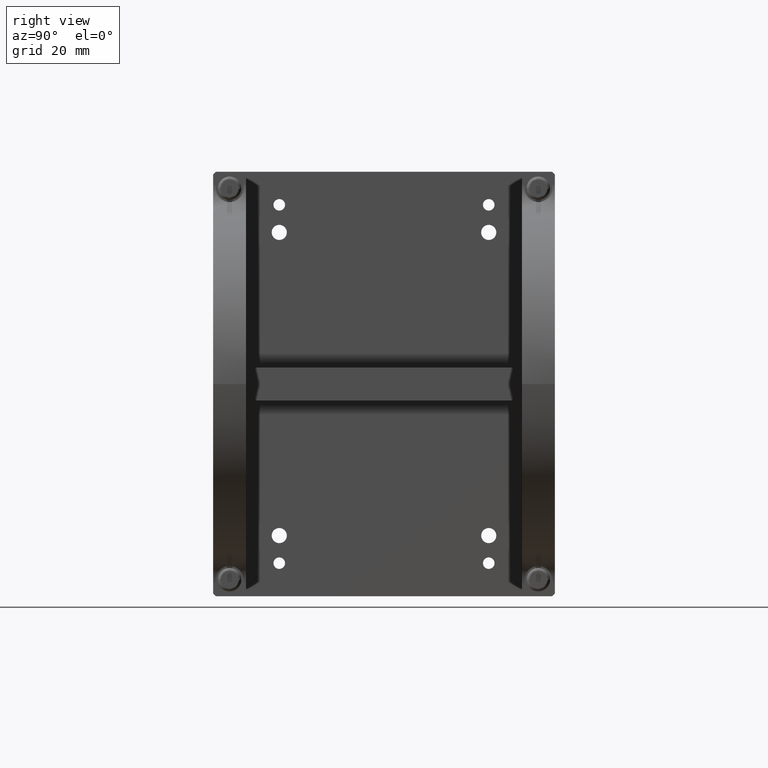
[diagram: clean part render]
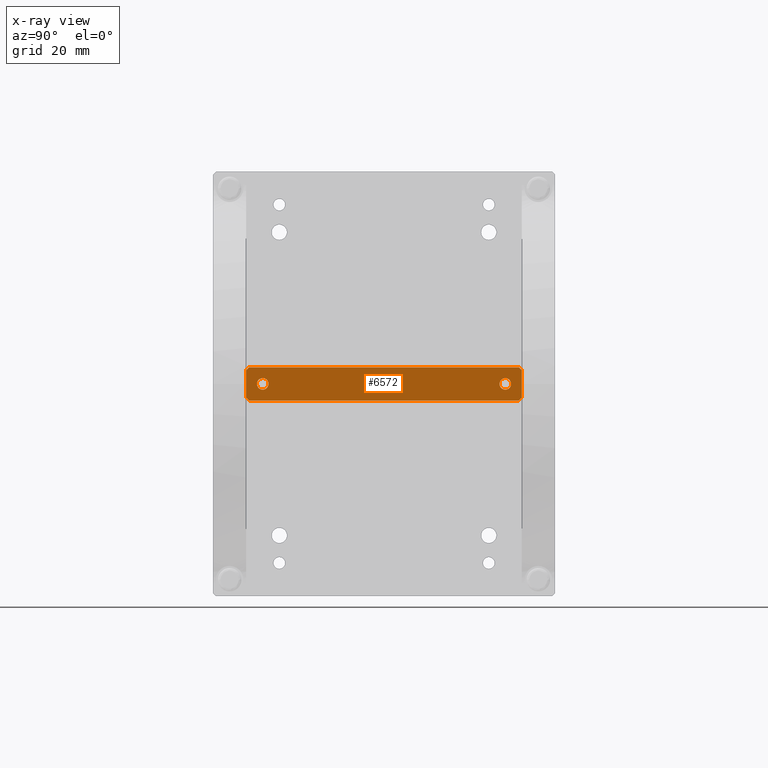
[diagram: x-ray — body ghosted, one internal face saturated and labeled with its STEP entity id]
A machine part, right view, then the same camera in x-ray: the body is ghosted and one INTERNAL B-rep face — a face not visible from any outside direction — is saturated and labeled: STEP entity #6572.
In plain terms, the highlighted face is a freeform B-spline surface patch.
Its self-contained STEP definition (entity closure, byte-faithful):
#38 = CARTESIAN_POINT ( 'NONE',  ( 0.0000000000000000000, 43.99999999987430499, 2.100000000000000089 ) ) ;
#57 = CARTESIAN_POINT ( 'NONE',  ( 0.0000000000000000000, -42.94158106666667152, 1.834612135999997840 ) ) ;
#85 = CARTESIAN_POINT ( 'NONE',  ( 0.0000000000000000000, -50.00000000000000000, -5.000000001333329891 ) ) ;
#89 = CARTESIAN_POINT ( 'NONE',  ( 0.0000000000000000000, -43.99999999987430499, 2.100000000000000089 ) ) ;
#128 = CARTESIAN_POINT ( 'NONE',  ( -0.0000000000000000000, -41.95431806666667285, -0.5488514679999981771 ) ) ;
#263 = EDGE_LOOP ( 'NONE', ( #5318, #7075, #3029, #3217, #6960, #6922, #2659, #6335 ) ) ;
#270 = CARTESIAN_POINT ( 'NONE',  ( -0.0000000000000000000, 45.67992726666667380, -1.289921203999999211 ) ) ;
#362 = EDGE_CURVE ( 'NONE', #1729, #1480, #4016, .T. ) ;
#370 = CARTESIAN_POINT ( 'NONE',  ( 0.0000000000000000000, 50.00000000000000000, -5.000000001333329891 ) ) ;
#383 = CARTESIAN_POINT ( 'NONE',  ( -0.0000000000000000000, 41.90000000000001279, -0.2757759359999994997 ) ) ;
#407 = CARTESIAN_POINT ( 'NONE',  ( 0.0000000000000000000, 49.33333333333333570, -5.666666667999999518 ) ) ;
#417 = CARTESIAN_POINT ( 'NONE',  ( -0.0000000000000000000, 43.45114853333333116, 2.045681896000001387 ) ) ;
#563 = EDGE_CURVE ( 'NONE', #1792, #2885, #5762, .T. ) ;
#630 = CARTESIAN_POINT ( 'NONE',  ( 0.0000000000000000000, -45.83461206666667209, 1.058418956000003464 ) ) ;
#640 = VERTEX_POINT ( 'NONE', #4964 ) ;
#705 = CARTESIAN_POINT ( 'NONE',  ( 0.0000000000000000000, -50.00000000000000000, -6.000000000000000000 ) ) ;
#733 = CARTESIAN_POINT ( 'NONE',  ( -0.0000000000000000000, -42.94158106666665731, -1.834612135999999394 ) ) ;
#787 = CARTESIAN_POINT ( 'NONE',  ( 0.0000000000000000000, -50.00000000000000000, 5.000000001333329891 ) ) ;
#811 = EDGE_CURVE ( 'NONE', #2975, #3176, #4589, .T. ) ;
#812 = CARTESIAN_POINT ( 'NONE',  ( 0.0000000000000000000, 43.99999999987430499, 2.100000000000000089 ) ) ;
#891 = CARTESIAN_POINT ( 'NONE',  ( 0.0000000000000000000, 41.90000000000000568, 0.2757759359999994997 ) ) ;
#1044 = CARTESIAN_POINT ( 'NONE',  ( -0.0000000000000000000, 41.95431806666667285, 0.5488514679999977330 ) ) ;
#1076 = CARTESIAN_POINT ( 'NONE',  ( 0.0000000000000000000, -49.00000000000000000, -6.000000000000000000 ) ) ;
#1180 = EDGE_LOOP ( 'NONE', ( #1895, #4244 ) ) ;
#1227 = EDGE_CURVE ( 'NONE', #5069, #4629, #5702, .T. ) ;
#1396 = CARTESIAN_POINT ( 'NONE',  ( -0.0000000000000000000, -44.27577586666665610, -2.100000000000000089 ) ) ;
#1480 = VERTEX_POINT ( 'NONE', #4484 ) ;
#1482 = CARTESIAN_POINT ( 'NONE',  ( -0.0000000000000000000, 42.71007873333334715, -1.679927268000003693 ) ) ;
#1593 = CARTESIAN_POINT ( 'NONE',  ( 0.0000000000000000000, 49.66666666666667140, -5.333333335999999925 ) ) ;
#1716 = CARTESIAN_POINT ( 'NONE',  ( 0.0000000000000000000, -49.00000000000000000, 6.000000000000000000 ) ) ;
#1729 = VERTEX_POINT ( 'NONE', #5093 ) ;
#1744 = CARTESIAN_POINT ( 'NONE',  ( -0.0000000000000000000, -44.54885146666668305, 2.045681896000001387 ) ) ;
#1753 = VERTEX_POINT ( 'NONE', #4469 ) ;
#1792 = VERTEX_POINT ( 'NONE', #1716 ) ;
#1816 = CARTESIAN_POINT ( 'NONE',  ( -0.0000000000000000000, -46.10000000000000142, -0.2757759359999994997 ) ) ;
#1851 = CARTESIAN_POINT ( 'NONE',  ( -0.0000000000000000000, -42.16538780000001196, 1.058418939999998809 ) ) ;
#1860 = CARTESIAN_POINT ( 'NONE',  ( 0.0000000000000000000, 50.00000000000000000, 6.000000000000000000 ) ) ;
#1889 = CARTESIAN_POINT ( 'NONE',  ( 0.0000000000000000000, 45.05841893333334980, 1.834612135999997840 ) ) ;
#1894 = FACE_BOUND ( 'NONE', #1180, .T. ) ;
#1895 = ORIENTED_EDGE ( 'NONE', *, *, #2284, .T. ) ;
#1924 = CARTESIAN_POINT ( 'NONE',  ( -0.0000000000000000000, 45.05841893333334269, -1.834612135999999172 ) ) ;
#1963 = CARTESIAN_POINT ( 'NONE',  ( -0.0000000000000000000, 44.54885146666666884, 2.045681896000002276 ) ) ;
#1974 = EDGE_CURVE ( 'NONE', #1753, #2885, #6993, .T. ) ;
#2011 = VERTEX_POINT ( 'NONE', #4942 ) ;
#2056 = B_SPLINE_CURVE_WITH_KNOTS ( 'NONE', 1,
 ( #5838, #370 ),
 .UNSPECIFIED., .F., .F.,
 ( 2, 2 ),
 ( 0.0000000000000000000, 1.000000000000000000 ),
 .UNSPECIFIED. ) ;
#2079 = CARTESIAN_POINT ( 'NONE',  ( -0.0000000000000000000, 43.45114853333334537, -2.045681896000001387 ) ) ;
#2284 = EDGE_CURVE ( 'NONE', #2011, #640, #5224, .T. ) ;
#2285 = CARTESIAN_POINT ( 'NONE',  ( 0.0000000000000000000, -44.27577586666666321, 2.100000000000000533 ) ) ;
#2287 = CARTESIAN_POINT ( 'NONE',  ( -0.0000000000000000000, -43.45114853333335247, 2.045681896000002276 ) ) ;
#2316 = CARTESIAN_POINT ( 'NONE',  ( 0.0000000000000000000, -49.00000000000000000, -6.000000000000000000 ) ) ;
#2321 = CARTESIAN_POINT ( 'NONE',  ( 0.0000000000000000000, -43.99999999987430499, 2.100000000000000089 ) ) ;
#2391 = CARTESIAN_POINT ( 'NONE',  ( -0.0000000000000000000, -43.45114853333333116, -2.045681896000001387 ) ) ;
#2466 = CARTESIAN_POINT ( 'NONE',  ( -0.0000000000000000000, 45.28992126666667417, 1.679927268000004137 ) ) ;
#2526 = CARTESIAN_POINT ( 'NONE',  ( 0.0000000000000000000, -49.00000000000000000, 6.000000000000000000 ) ) ;
#2576 = CARTESIAN_POINT ( 'NONE',  ( -0.0000000000000000000, 44.27577586666666321, 2.100000000000000533 ) ) ;
#2604 = CARTESIAN_POINT ( 'NONE',  ( -0.0000000000000000000, -44.54885146666666884, -2.045681896000001387 ) ) ;
#2659 = ORIENTED_EDGE ( 'NONE', *, *, #6202, .T. ) ;
#2799 = CARTESIAN_POINT ( 'NONE',  ( 0.0000000000000000000, -50.00000000000000000, 5.000000001333329891 ) ) ;
#2866 = CARTESIAN_POINT ( 'NONE',  ( 0.0000000000000000000, -46.10000000000000142, 0.2757759359999994997 ) ) ;
#2885 = VERTEX_POINT ( 'NONE', #5440 ) ;
#2975 = VERTEX_POINT ( 'NONE', #38 ) ;
#2985 = CARTESIAN_POINT ( 'NONE',  ( -0.0000000000000000000, 46.10000000000000142, 0.2757759360000002768 ) ) ;
#3018 = CARTESIAN_POINT ( 'NONE',  ( 0.0000000000000000000, 43.99999999942569673, -2.100000000000000089 ) ) ;
#3029 = ORIENTED_EDGE ( 'NONE', *, *, #5717, .T. ) ;
#3082 = CARTESIAN_POINT ( 'NONE',  ( -0.0000000000000000000, -45.28992126666666707, -1.679927268000003693 ) ) ;
#3090 = CARTESIAN_POINT ( 'NONE',  ( -0.0000000000000000000, 44.27577586666667742, -2.100000000000000533 ) ) ;
#3125 = CARTESIAN_POINT ( 'NONE',  ( 0.0000000000000000000, 46.04568179999999700, 0.5488514840000022765 ) ) ;
#3131 = CARTESIAN_POINT ( 'NONE',  ( 0.0000000000000000000, 42.32007286666668477, -1.289921219999995872 ) ) ;
#3176 = VERTEX_POINT ( 'NONE', #6562 ) ;
#3182 = ORIENTED_EDGE ( 'NONE', *, *, #811, .T. ) ;
#3217 = ORIENTED_EDGE ( 'NONE', *, *, #362, .T. ) ;
#3286 = CARTESIAN_POINT ( 'NONE',  ( 0.0000000000000000000, 43.99999999942569673, -2.100000000000000089 ) ) ;
#3422 = CARTESIAN_POINT ( 'NONE',  ( 0.0000000000000000000, -45.28992113333332270, 1.679927284000002574 ) ) ;
#3461 = CARTESIAN_POINT ( 'NONE',  ( 0.0000000000000000000, -43.99999999942569673, -2.100000000000000089 ) ) ;
#3586 = CARTESIAN_POINT ( 'NONE',  ( 0.0000000000000000000, -49.00000000000000000, 6.000000000000000000 ) ) ;
#3647 = CARTESIAN_POINT ( 'NONE',  ( 0.0000000000000000000, 45.28992113333332981, -1.679927284000000132 ) ) ;
#3681 = CARTESIAN_POINT ( 'NONE',  ( 0.0000000000000000000, 49.00000000000000000, 6.000000000000000000 ) ) ;
#3715 = CARTESIAN_POINT ( 'NONE',  ( 0.0000000000000000000, -45.05841893333334269, -1.834612135999998506 ) ) ;
#3749 = EDGE_LOOP ( 'NONE', ( #3182, #5890 ) ) ;
#3798 = CARTESIAN_POINT ( 'NONE',  ( 0.0000000000000000000, 41.95431820000002432, -0.5488514840000009443 ) ) ;
#3830 = CARTESIAN_POINT ( 'NONE',  ( 0.0000000000000000000, 50.00000000000000000, 5.000000001333329891 ) ) ;
#4016 = B_SPLINE_CURVE_WITH_KNOTS ( 'NONE', 3,
 ( #4307, #1593, #407, #6462 ),
 .UNSPECIFIED., .F., .F.,
 ( 4, 4 ),
 ( 0.0000000000000000000, 1.000000000000000000 ),
 .UNSPECIFIED. ) ;
#4032 = CARTESIAN_POINT ( 'NONE',  ( 0.0000000000000000000, -50.00000000000000000, -5.000000001333329891 ) ) ;
#4049 = B_SPLINE_CURVE_WITH_KNOTS ( 'NONE', 1,
 ( #4032, #6267 ),
 .UNSPECIFIED., .F., .F.,
 ( 2, 2 ),
 ( 0.0000000000000000000, 1.000000000000000000 ),
 .UNSPECIFIED. ) ;
#4066 = FACE_OUTER_BOUND ( 'NONE', #263, .T. ) ;
#4130 = CARTESIAN_POINT ( 'NONE',  ( 0.0000000000000000000, 44.54885146666667595, -2.045681896000001387 ) ) ;
#4163 = CARTESIAN_POINT ( 'NONE',  ( 0.0000000000000000000, 45.83461206666666499, -1.058418956000002131 ) ) ;
#4244 = ORIENTED_EDGE ( 'NONE', *, *, #5631, .T. ) ;
#4261 = CARTESIAN_POINT ( 'NONE',  ( -0.0000000000000000000, -45.83461220000000935, -1.058418939999999253 ) ) ;
#4307 = CARTESIAN_POINT ( 'NONE',  ( 0.0000000000000000000, 50.00000000000000000, -5.000000001333329891 ) ) ;
#4355 = CARTESIAN_POINT ( 'NONE',  ( -0.0000000000000000000, 42.16538779999999065, -1.058418939999999253 ) ) ;
#4395 = CARTESIAN_POINT ( 'NONE',  ( 0.0000000000000000000, 42.16538793333335633, 1.058418956000003464 ) ) ;
#4469 = CARTESIAN_POINT ( 'NONE',  ( 0.0000000000000000000, 50.00000000000000000, 5.000000001333329891 ) ) ;
#4484 = CARTESIAN_POINT ( 'NONE',  ( 0.0000000000000000000, 49.00000000000000000, -6.000000000000000000 ) ) ;
#4539 = CARTESIAN_POINT ( 'NONE',  ( -0.0000000000000000000, -43.72422413333333679, 2.100000000000001421 ) ) ;
#4588 = EDGE_CURVE ( 'NONE', #1480, #4629, #6231, .T. ) ;
#4589 = B_SPLINE_CURVE_WITH_KNOTS ( 'NONE', 3,
 ( #7179, #5959, #417, #6077, #6515, #5999, #4395, #1044, #891, #383, #3798, #4355, #3131, #1482, #5389, #2079, #6590, #3286 ),
 .UNSPECIFIED., .F., .F.,
 ( 4, 2, 2, 2, 2, 2, 2, 2, 4 ),
 ( 0.0000000000000000000, 0.3926990816987244171, 0.7853981633974488341, 1.178097245096173307, 1.570796326794897668, 1.963495408493622030, 2.356194490192346613, 2.748893571891070753, 3.141592653589795336 ),
 .UNSPECIFIED. ) ;
#4612 = CARTESIAN_POINT ( 'NONE',  ( -0.0000000000000000000, -45.05841893333332138, 1.834612135999998950 ) ) ;
#4629 = VERTEX_POINT ( 'NONE', #5456 ) ;
#4648 = CARTESIAN_POINT ( 'NONE',  ( 0.0000000000000000000, -42.16538793333334212, -1.058418956000002131 ) ) ;
#4689 = CARTESIAN_POINT ( 'NONE',  ( 0.0000000000000000000, 45.67992713333331523, 1.289921219999995872 ) ) ;
#4942 = CARTESIAN_POINT ( 'NONE',  ( 0.0000000000000000000, -43.99999999942569673, -2.100000000000000089 ) ) ;
#4964 = CARTESIAN_POINT ( 'NONE',  ( 0.0000000000000000000, -43.99999999987430499, 2.100000000000000089 ) ) ;
#5069 = VERTEX_POINT ( 'NONE', #5588 ) ;
#5093 = CARTESIAN_POINT ( 'NONE',  ( 0.0000000000000000000, 50.00000000000000000, -5.000000001333329891 ) ) ;
#5126 = CARTESIAN_POINT ( 'NONE',  ( 0.0000000000000000000, -42.32007286666667767, 1.289921219999996538 ) ) ;
#5224 = B_SPLINE_CURVE_WITH_KNOTS ( 'NONE', 3,
 ( #3461, #6289, #2391, #733, #5699, #6251, #4648, #128, #6320, #6183, #5666, #1851, #5126, #6743, #57, #2287, #4539, #2321 ),
 .UNSPECIFIED., .F., .F.,
 ( 4, 2, 2, 2, 2, 2, 2, 2, 4 ),
 ( 0.0000000000000000000, 0.3926990816987244171, 0.7853981633974488341, 1.178097245096173307, 1.570796326794897668, 1.963495408493622030, 2.356194490192346613, 2.748893571891070753, 3.141592653589795336 ),
 .UNSPECIFIED. ) ;
#5318 = ORIENTED_EDGE ( 'NONE', *, *, #563, .T. ) ;
#5344 = CARTESIAN_POINT ( 'NONE',  ( -0.0000000000000000000, 45.83461219999999514, 1.058418939999999031 ) ) ;
#5389 = CARTESIAN_POINT ( 'NONE',  ( 0.0000000000000000000, 42.94158106666667152, -1.834612135999998506 ) ) ;
#5440 = CARTESIAN_POINT ( 'NONE',  ( 0.0000000000000000000, 49.00000000000000000, 6.000000000000000000 ) ) ;
#5443 = B_SPLINE_CURVE_WITH_KNOTS ( 'NONE', 1,
 ( #3586, #787 ),
 .UNSPECIFIED., .F., .F.,
 ( 2, 2 ),
 ( 0.0000000000000000000, 1.000000000000000000 ),
 .UNSPECIFIED. ) ;
#5456 = CARTESIAN_POINT ( 'NONE',  ( 0.0000000000000000000, -49.00000000000000000, -6.000000000000000000 ) ) ;
#5588 = CARTESIAN_POINT ( 'NONE',  ( 0.0000000000000000000, -50.00000000000000000, -5.000000001333329891 ) ) ;
#5631 = EDGE_CURVE ( 'NONE', #640, #2011, #5983, .T. ) ;
#5664 = CARTESIAN_POINT ( 'NONE',  ( -0.0000000000000000000, -45.67992726666666670, 1.289921203999997878 ) ) ;
#5666 = CARTESIAN_POINT ( 'NONE',  ( 0.0000000000000000000, -41.95431820000001011, 0.5488514840000022765 ) ) ;
#5699 = CARTESIAN_POINT ( 'NONE',  ( 0.0000000000000000000, -42.71007886666668441, -1.679927284000000354 ) ) ;
#5702 = B_SPLINE_CURVE_WITH_KNOTS ( 'NONE', 1,
 ( #85, #2316 ),
 .UNSPECIFIED., .F., .F.,
 ( 2, 2 ),
 ( 0.0000000000000000000, 1.000000000000000000 ),
 .UNSPECIFIED. ) ;
#5717 = EDGE_CURVE ( 'NONE', #1753, #1729, #2056, .T. ) ;
#5762 = B_SPLINE_CURVE_WITH_KNOTS ( 'NONE', 1,
 ( #2526, #6494 ),
 .UNSPECIFIED., .F., .F.,
 ( 2, 2 ),
 ( 0.0000000000000000000, 1.000000000000000000 ),
 .UNSPECIFIED. ) ;
#5838 = CARTESIAN_POINT ( 'NONE',  ( 0.0000000000000000000, 50.00000000000000000, 5.000000001333329891 ) ) ;
#5866 = B_SPLINE_CURVE_WITH_KNOTS ( 'NONE', 3,
 ( #3018, #3090, #4130, #1924, #3647, #270, #4163, #6918, #6435, #2985, #3125, #5344, #4689, #2466, #1889, #1963, #2576, #812 ),
 .UNSPECIFIED., .F., .F.,
 ( 4, 2, 2, 2, 2, 2, 2, 2, 4 ),
 ( 0.0000000000000000000, 0.3926990816987245281, 0.7853981633974490562, 1.178097245096173529, 1.570796326794898112, 1.963495408493622474, 2.356194490192347057, 2.748893571891071641, 3.141592653589795336 ),
 .UNSPECIFIED. ) ;
#5890 = ORIENTED_EDGE ( 'NONE', *, *, #7118, .T. ) ;
#5947 = CARTESIAN_POINT ( 'NONE',  ( 0.0000000000000000000, -43.99999999942569673, -2.100000000000000089 ) ) ;
#5959 = CARTESIAN_POINT ( 'NONE',  ( 0.0000000000000000000, 43.72422413333333679, 2.100000000000000533 ) ) ;
#5983 = B_SPLINE_CURVE_WITH_KNOTS ( 'NONE', 3,
 ( #89, #2285, #1744, #4612, #3422, #5664, #630, #6845, #2866, #1816, #6354, #4261, #6459, #3082, #3715, #2604, #1396, #5947 ),
 .UNSPECIFIED., .F., .F.,
 ( 4, 2, 2, 2, 2, 2, 2, 2, 4 ),
 ( 0.0000000000000000000, 0.3926990816987244171, 0.7853981633974488341, 1.178097245096173307, 1.570796326794897668, 1.963495408493622030, 2.356194490192346613, 2.748893571891070753, 3.141592653589795336 ),
 .UNSPECIFIED. ) ;
#5999 = CARTESIAN_POINT ( 'NONE',  ( -0.0000000000000000000, 42.32007273333334751, 1.289921203999997878 ) ) ;
#6077 = CARTESIAN_POINT ( 'NONE',  ( -0.0000000000000000000, 42.94158106666665731, 1.834612135999998950 ) ) ;
#6183 = CARTESIAN_POINT ( 'NONE',  ( -0.0000000000000000000, -41.90000000000001990, 0.2757759360000004434 ) ) ;
#6202 = EDGE_CURVE ( 'NONE', #5069, #6983, #4049, .T. ) ;
#6231 = B_SPLINE_CURVE_WITH_KNOTS ( 'NONE', 1,
 ( #7029, #1076 ),
 .UNSPECIFIED., .F., .F.,
 ( 2, 2 ),
 ( 0.0000000000000000000, 1.000000000000000000 ),
 .UNSPECIFIED. ) ;
#6251 = CARTESIAN_POINT ( 'NONE',  ( -0.0000000000000000000, -42.32007273333334751, -1.289921203999999211 ) ) ;
#6267 = CARTESIAN_POINT ( 'NONE',  ( 0.0000000000000000000, -50.00000000000000000, 5.000000001333329891 ) ) ;
#6289 = CARTESIAN_POINT ( 'NONE',  ( 0.0000000000000000000, -43.72422413333332969, -2.100000000000000089 ) ) ;
#6320 = CARTESIAN_POINT ( 'NONE',  ( 0.0000000000000000000, -41.90000000000000568, -0.2757759360000003879 ) ) ;
#6335 = ORIENTED_EDGE ( 'NONE', *, *, #6798, .F. ) ;
#6354 = CARTESIAN_POINT ( 'NONE',  ( 0.0000000000000000000, -46.04568180000000410, -0.5488514840000009443 ) ) ;
#6366 = CARTESIAN_POINT ( 'NONE',  ( 0.0000000000000000000, -50.00000000000000000, 6.000000000000000000 ) ) ;
#6435 = CARTESIAN_POINT ( 'NONE',  ( 0.0000000000000000000, 46.10000000000000142, -0.2757759360000003324 ) ) ;
#6459 = CARTESIAN_POINT ( 'NONE',  ( 0.0000000000000000000, -45.67992713333333654, -1.289921219999995872 ) ) ;
#6462 = CARTESIAN_POINT ( 'NONE',  ( 0.0000000000000000000, 49.00000000000000000, -6.000000000000000000 ) ) ;
#6494 = CARTESIAN_POINT ( 'NONE',  ( 0.0000000000000000000, 49.00000000000000000, 6.000000000000000000 ) ) ;
#6515 = CARTESIAN_POINT ( 'NONE',  ( 0.0000000000000000000, 42.71007886666668441, 1.679927284000002574 ) ) ;
#6562 = CARTESIAN_POINT ( 'NONE',  ( 0.0000000000000000000, 43.99999999942569673, -2.100000000000000089 ) ) ;
#6572 = ADVANCED_FACE ( 'NONE', ( #6924, #1894, #4066 ), #7244, .T. ) ;
#6590 = CARTESIAN_POINT ( 'NONE',  ( -0.0000000000000000000, 43.72422413333335101, -2.100000000000000089 ) ) ;
#6743 = CARTESIAN_POINT ( 'NONE',  ( -0.0000000000000000000, -42.71007873333334715, 1.679927268000004137 ) ) ;
#6798 = EDGE_CURVE ( 'NONE', #1792, #6983, #5443, .T. ) ;
#6845 = CARTESIAN_POINT ( 'NONE',  ( -0.0000000000000000000, -46.04568193333332715, 0.5488514679999977330 ) ) ;
#6890 = CARTESIAN_POINT ( 'NONE',  ( 0.0000000000000000000, 50.00000000000000000, -6.000000000000000000 ) ) ;
#6918 = CARTESIAN_POINT ( 'NONE',  ( -0.0000000000000000000, 46.04568193333333426, -0.5488514679999981771 ) ) ;
#6922 = ORIENTED_EDGE ( 'NONE', *, *, #1227, .F. ) ;
#6924 = FACE_BOUND ( 'NONE', #3749, .T. ) ;
#6960 = ORIENTED_EDGE ( 'NONE', *, *, #4588, .T. ) ;
#6983 = VERTEX_POINT ( 'NONE', #2799 ) ;
#6993 = B_SPLINE_CURVE_WITH_KNOTS ( 'NONE', 1,
 ( #3830, #3681 ),
 .UNSPECIFIED., .F., .F.,
 ( 2, 2 ),
 ( 0.0000000000000000000, 1.000000000000000000 ),
 .UNSPECIFIED. ) ;
#7029 = CARTESIAN_POINT ( 'NONE',  ( 0.0000000000000000000, 49.00000000000000000, -6.000000000000000000 ) ) ;
#7075 = ORIENTED_EDGE ( 'NONE', *, *, #1974, .F. ) ;
#7118 = EDGE_CURVE ( 'NONE', #3176, #2975, #5866, .T. ) ;
#7179 = CARTESIAN_POINT ( 'NONE',  ( 0.0000000000000000000, 43.99999999987430499, 2.100000000000000089 ) ) ;
#7244 = B_SPLINE_SURFACE_WITH_KNOTS ( 'NONE', 1, 1, ( 
 ( #705, #6890 ),
 ( #6366, #1860 ) ),
 .UNSPECIFIED., .F., .F., .F.,
 ( 2, 2 ),
 ( 2, 2 ),
 ( 0.0000000000000000000, 1.000000000000000000 ),
 ( 0.0000000000000000000, 1.000000000000000000 ),
 .UNSPECIFIED. ) ;